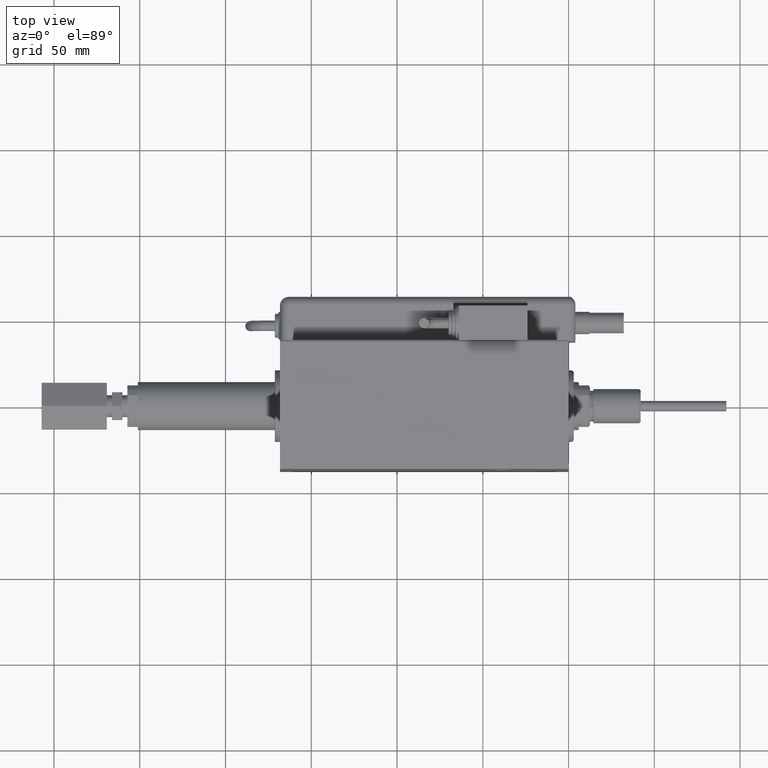
[diagram: clean part render]
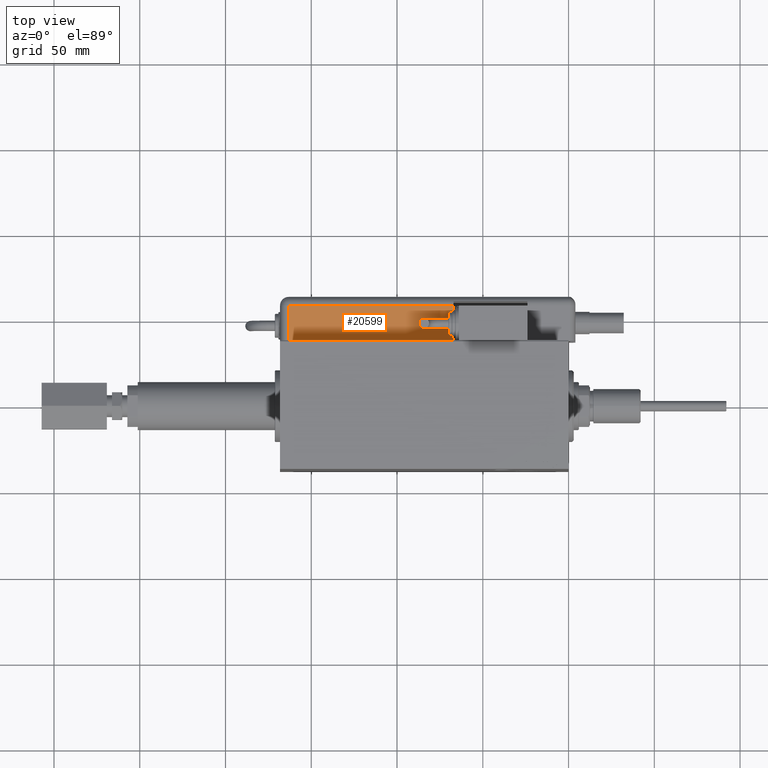
[diagram: same view with one face highlighted and labeled with its STEP entity id]
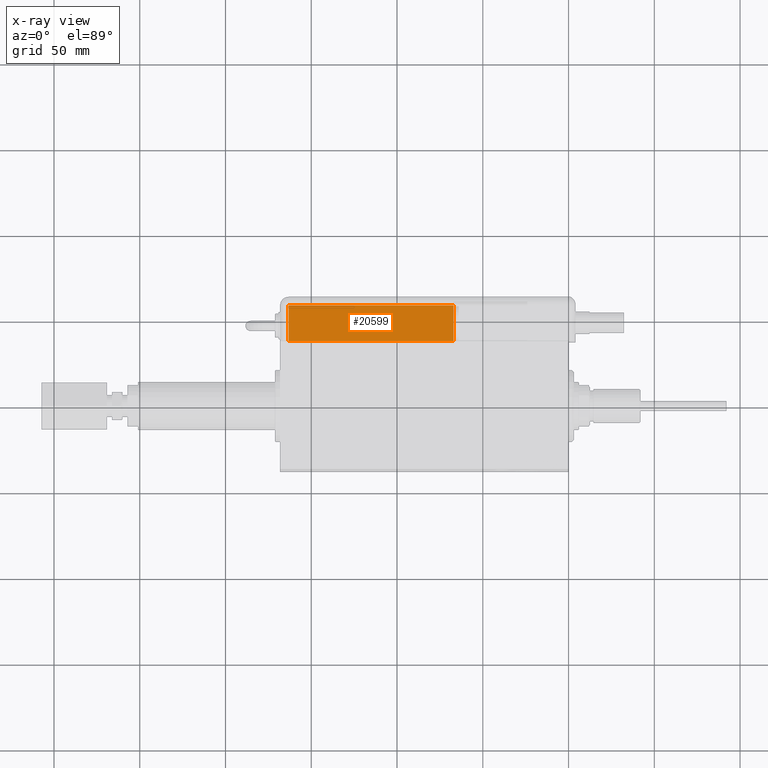
[diagram: x-ray of the same camera — body ghosted, the highlighted face saturated]
A machine part, top view. The second image highlights one B-rep face of the part: STEP entity #20599.
The next image is the same camera in x-ray: the body ghosted, the highlighted face saturated — about 0% of this face is hidden behind the body in this view.
In plain terms, the highlighted planar face has unit normal (0, 0, -1).
Its self-contained STEP definition (entity closure, byte-faithful):
#1826 = DIRECTION ( 'NONE',  ( 0.000000000000000000, -1.000000000000000000, 0.000000000000000000 ) ) ;
#2945 = VERTEX_POINT ( 'NONE', #55059 ) ;
#3019 = VECTOR ( 'NONE', #43756, 1000.000000000000000 ) ;
#3073 = ORIENTED_EDGE ( 'NONE', *, *, #37776, .F. ) ;
#3145 = ORIENTED_EDGE ( 'NONE', *, *, #4972, .T. ) ;
#4972 = EDGE_CURVE ( 'NONE', #48283, #29671, #53346, .T. ) ;
#5711 = CARTESIAN_POINT ( 'NONE',  ( -28.99999999999999645, 22.99999999999998934, 101.2000000000000028 ) ) ;
#9362 = CARTESIAN_POINT ( 'NONE',  ( -28.99999999999999645, 20.79999999999998295, 5.000000000000004441 ) ) ;
#11577 = VECTOR ( 'NONE', #42653, 1000.000000000000000 ) ;
#14288 = LINE ( 'NONE', #42541, #3019 ) ;
#14444 = AXIS2_PLACEMENT_3D ( 'NONE', #57378, #14538, #33478 ) ;
#14538 = DIRECTION ( 'NONE',  ( 1.000000000000000000, 0.000000000000000000, -0.000000000000000000 ) ) ;
#17644 = CARTESIAN_POINT ( 'NONE',  ( -28.99999999999999645, -9.421223957302265857E-15, 5.000000000000004441 ) ) ;
#20599 = ADVANCED_FACE ( 'NONE', ( #48064 ), #57072, .F. ) ;
#21888 = EDGE_CURVE ( 'NONE', #2945, #46515, #48237, .T. ) ;
#26837 = DIRECTION ( 'NONE',  ( 0.000000000000000000, 0.000000000000000000, -1.000000000000000000 ) ) ;
#26850 = EDGE_LOOP ( 'NONE', ( #3073, #35384, #48919, #3145 ) ) ;
#29671 = VERTEX_POINT ( 'NONE', #17644 ) ;
#31201 = CARTESIAN_POINT ( 'NONE',  ( -28.99999999999999645, 20.79999999999998295, 169.1999999999999886 ) ) ;
#33478 = DIRECTION ( 'NONE',  ( -0.000000000000000000, 0.000000000000000000, -1.000000000000000000 ) ) ;
#35384 = ORIENTED_EDGE ( 'NONE', *, *, #21888, .F. ) ;
#37776 = EDGE_CURVE ( 'NONE', #46515, #29671, #14288, .T. ) ;
#40493 = LINE ( 'NONE', #31201, #43767 ) ;
#42541 = CARTESIAN_POINT ( 'NONE',  ( -28.99999999999999645, -9.421223957302265857E-15, 169.1999999999999886 ) ) ;
#42653 = DIRECTION ( 'NONE',  ( 0.000000000000000000, -1.000000000000000000, 0.000000000000000000 ) ) ;
#43632 = EDGE_CURVE ( 'NONE', #2945, #48283, #40493, .T. ) ;
#43756 = DIRECTION ( 'NONE',  ( -0.000000000000000000, -0.000000000000000000, -1.000000000000000000 ) ) ;
#43767 = VECTOR ( 'NONE', #26837, 1000.000000000000000 ) ;
#44337 = CARTESIAN_POINT ( 'NONE',  ( -28.99999999999999645, -1.040834085586084257E-14, 5.000000000000004441 ) ) ;
#45873 = VECTOR ( 'NONE', #1826, 1000.000000000000000 ) ;
#46515 = VERTEX_POINT ( 'NONE', #58830 ) ;
#48064 = FACE_OUTER_BOUND ( 'NONE', #26850, .T. ) ;
#48237 = LINE ( 'NONE', #5711, #11577 ) ;
#48283 = VERTEX_POINT ( 'NONE', #9362 ) ;
#48919 = ORIENTED_EDGE ( 'NONE', *, *, #43632, .T. ) ;
#53346 = LINE ( 'NONE', #44337, #45873 ) ;
#55059 = CARTESIAN_POINT ( 'NONE',  ( -28.99999999999999645, 20.79999999999998295, 101.2000000000000028 ) ) ;
#57072 = PLANE ( 'NONE',  #14444 ) ;
#57378 = CARTESIAN_POINT ( 'NONE',  ( -28.99999999999999645, 25.79999999999998295, 169.1999999999999886 ) ) ;
#58830 = CARTESIAN_POINT ( 'NONE',  ( -28.99999999999999645, -9.421223957302264279E-15, 101.2000000000000028 ) ) ;